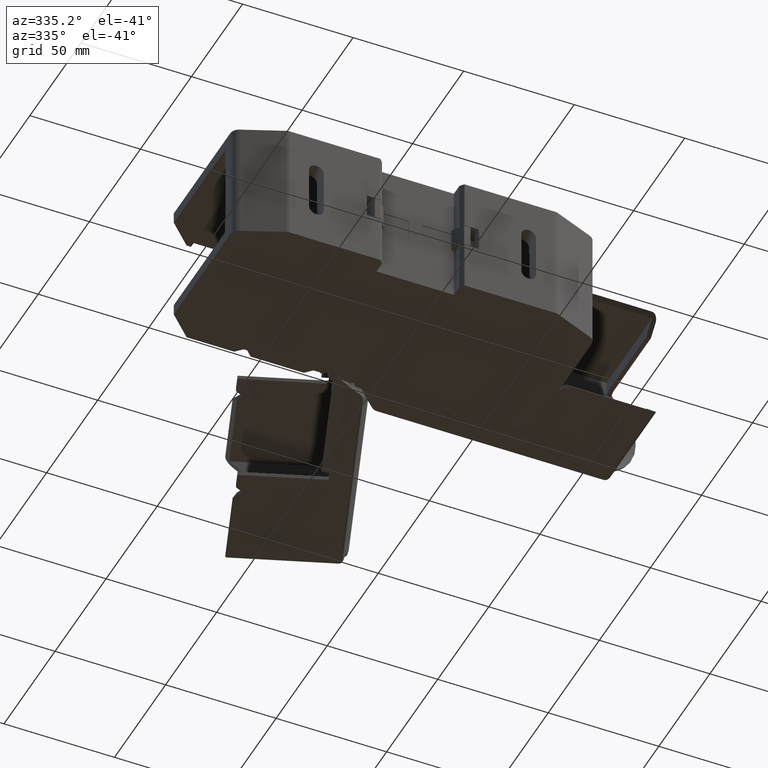
[diagram: clean part render]
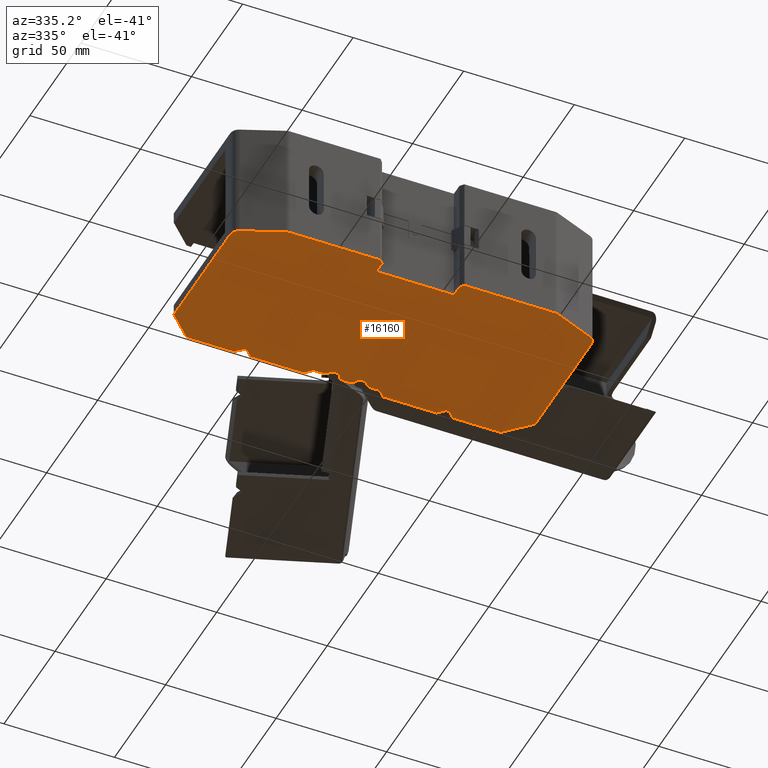
[diagram: same view with one face highlighted and labeled with its STEP entity id]
A machine part, auxiliary view. The second image highlights one B-rep face of the part: STEP entity #16160.
In plain terms, the highlighted planar face has unit normal (-0, 0, 1).
Its self-contained STEP definition (entity closure, byte-faithful):
#635 = CARTESIAN_POINT ( 'NONE',  ( 438.3583398030324400, -266.4817908835909200, -23.50000000000452300 ) ) ;
#651 = DIRECTION ( 'NONE',  ( -1.000000000000000000, 0.0000000000000000000, 0.0000000000000000000 ) ) ;
#675 = LINE ( 'NONE', #635, #18953 ) ;
#708 = CARTESIAN_POINT ( 'NONE',  ( 420.5639263486614300, -273.1817908678040700, -23.50000000000452300 ) ) ;
#719 = DIRECTION ( 'NONE',  ( -6.373112589876832200E-025, -1.346653504139820300E-027, 1.000000000000000000 ) ) ;
#728 = DIRECTION ( 'NONE',  ( 0.9238795256513937500, -0.3826834489263359300, 0.0000000000000000000 ) ) ;
#778 = CARTESIAN_POINT ( 'NONE',  ( 360.4927018639037300, -266.0016971900641900, -23.50000000000452300 ) ) ;
#806 = DIRECTION ( 'NONE',  ( 1.000000000000000000, 0.0000000000000000000, 1.762592932593031400E-024 ) ) ;
#810 = LINE ( 'NONE', #778, #18997 ) ;
#833 = DIRECTION ( 'NONE',  ( -1.000000000000000000, 0.0000000000000000000, 0.0000000000000000000 ) ) ;
#866 = CARTESIAN_POINT ( 'NONE',  ( 421.7734356056909600, -271.7264437664534900, -23.50000000000452300 ) ) ;
#879 = DIRECTION ( 'NONE',  ( -6.373112589876832200E-025, -1.346653504139820300E-027, 1.000000000000000000 ) ) ;
#895 = CARTESIAN_POINT ( 'NONE',  ( 362.0234356596091100, -262.3061790874586400, -23.50000000000483200 ) ) ;
#900 = DIRECTION ( 'NONE',  ( -0.0000000000000000000, -0.0000000000000000000, 1.000000000000000000 ) ) ;
#901 = DIRECTION ( 'NONE',  ( -1.000000000000000000, 0.0000000000000000000, 0.0000000000000000000 ) ) ;
#927 = DIRECTION ( 'NONE',  ( -1.000000000000000000, 0.0000000000000000000, 0.0000000000000000000 ) ) ;
#931 = CARTESIAN_POINT ( 'NONE',  ( 438.3583398030324400, -273.6817934590882300, -23.50000000000452300 ) ) ;
#938 = CARTESIAN_POINT ( 'NONE',  ( 457.7734356056913000, -271.7264441558026500, -23.50000000000452300 ) ) ;
#958 = LINE ( 'NONE', #988, #19017 ) ;
#968 = LINE ( 'NONE', #931, #19024 ) ;
#979 = DIRECTION ( 'NONE',  ( -6.373112589876832200E-025, -1.346653504139820300E-027, 1.000000000000000000 ) ) ;
#988 = CARTESIAN_POINT ( 'NONE',  ( 457.2734356624135300, -197.1817918479589800, -23.50000000000452300 ) ) ;
#1009 = DIRECTION ( 'NONE',  ( 1.000000000000000000, 0.0000000000000000000, 1.762592932593031400E-024 ) ) ;
#1016 = DIRECTION ( 'NONE',  ( -3.360043194369954300E-056, -1.000000000000000000, 1.906306970961718500E-032 ) ) ;
#1076 = CARTESIAN_POINT ( 'NONE',  ( 458.9829445418212100, -273.1817909570307300, -23.50000000000452300 ) ) ;
#1078 = DIRECTION ( 'NONE',  ( -6.373112589876832200E-025, -1.346653504139820300E-027, 1.000000000000000000 ) ) ;
#1079 = DIRECTION ( 'NONE',  ( -1.000000000000000000, -1.110223024625155500E-013, 0.0000000000000000000 ) ) ;
#1218 = CARTESIAN_POINT ( 'NONE',  ( 480.9772257926351200, -253.6725215637366900, -23.50000000000452300 ) ) ;
#1234 = DIRECTION ( 'NONE',  ( -6.373112589876832200E-025, -1.346653504139820300E-027, 1.000000000000000000 ) ) ;
#1258 = DIRECTION ( 'NONE',  ( -1.000000000000000000, 0.0000000000000000000, 0.0000000000000000000 ) ) ;
#1270 = CARTESIAN_POINT ( 'NONE',  ( 398.5696458092634200, -253.6725206724789200, -23.50000000000452300 ) ) ;
#1271 = DIRECTION ( 'NONE',  ( -0.0000000000000000000, -0.0000000000000000000, 1.000000000000000000 ) ) ;
#1272 = CARTESIAN_POINT ( 'NONE',  ( 379.8297473953250000, -269.6817952781915400, -23.50000000000468200 ) ) ;
#1275 = LINE ( 'NONE', #1312, #19057 ) ;
#1290 = DIRECTION ( 'NONE',  ( -1.000000000000000000, -4.163336342344333200E-014, 0.0000000000000000000 ) ) ;
#1292 = DIRECTION ( 'NONE',  ( 1.000000000000000000, 0.0000000000000000000, 1.762592932593031400E-024 ) ) ;
#1296 = DIRECTION ( 'NONE',  ( -6.373112589876832200E-025, -1.346653504139820300E-027, 1.000000000000000000 ) ) ;
#1297 = DIRECTION ( 'NONE',  ( -1.000000000000000000, 0.0000000000000000000, 0.0000000000000000000 ) ) ;
#1300 = CARTESIAN_POINT ( 'NONE',  ( 438.3583398030324400, -273.6817911201741300, -23.50000000000452300 ) ) ;
#1307 = LINE ( 'NONE', #1300, #19043 ) ;
#1312 = CARTESIAN_POINT ( 'NONE',  ( 422.2734356056909100, -197.1817918479589800, -23.50000000000452300 ) ) ;
#1319 = DIRECTION ( 'NONE',  ( 0.0000000000000000000, 0.0000000000000000000, 1.000000000000000000 ) ) ;
#1324 = DIRECTION ( 'NONE',  ( 0.9238795915953047500, 0.3826832897236210300, 0.0000000000000000000 ) ) ;
#1331 = CARTESIAN_POINT ( 'NONE',  ( 499.7171231449609600, -269.6817953674185400, -23.50000000000462900 ) ) ;
#1341 = DIRECTION ( 'NONE',  ( 1.000000000000000000, 0.0000000000000000000, 0.0000000000000000000 ) ) ;
#1346 = DIRECTION ( 'NONE',  ( 3.360043194369954300E-056, 1.000000000000000000, -1.906306970961718500E-032 ) ) ;
#1353 = LINE ( 'NONE', #1356, #19112 ) ;
#1356 = CARTESIAN_POINT ( 'NONE',  ( 501.2478577149950100, -273.3773153394200800, -23.50000000000452300 ) ) ;
#2667 = VERTEX_POINT ( 'NONE', #39333 ) ;
#2668 = VERTEX_POINT ( 'NONE', #39351 ) ;
#2669 = VERTEX_POINT ( 'NONE', #39352 ) ;
#2673 = VERTEX_POINT ( 'NONE', #39369 ) ;
#2678 = VERTEX_POINT ( 'NONE', #39334 ) ;
#2683 = VERTEX_POINT ( 'NONE', #39356 ) ;
#2684 = VERTEX_POINT ( 'NONE', #39363 ) ;
#2686 = VERTEX_POINT ( 'NONE', #39372 ) ;
#2697 = VERTEX_POINT ( 'NONE', #39336 ) ;
#2705 = VERTEX_POINT ( 'NONE', #39434 ) ;
#2706 = VERTEX_POINT ( 'NONE', #39450 ) ;
#2707 = VERTEX_POINT ( 'NONE', #39388 ) ;
#2713 = VERTEX_POINT ( 'NONE', #39419 ) ;
#2714 = VERTEX_POINT ( 'NONE', #39447 ) ;
#2719 = VERTEX_POINT ( 'NONE', #39397 ) ;
#2721 = VERTEX_POINT ( 'NONE', #39412 ) ;
#2723 = VERTEX_POINT ( 'NONE', #39442 ) ;
#2724 = VERTEX_POINT ( 'NONE', #39392 ) ;
#2725 = VERTEX_POINT ( 'NONE', #39403 ) ;
#2727 = VERTEX_POINT ( 'NONE', #39402 ) ;
#2729 = VERTEX_POINT ( 'NONE', #39425 ) ;
#2731 = VERTEX_POINT ( 'NONE', #39406 ) ;
#2733 = VERTEX_POINT ( 'NONE', #39407 ) ;
#2735 = VERTEX_POINT ( 'NONE', #39408 ) ;
#2738 = VERTEX_POINT ( 'NONE', #39404 ) ;
#2742 = VERTEX_POINT ( 'NONE', #39437 ) ;
#2744 = VERTEX_POINT ( 'NONE', #39426 ) ;
#2748 = VERTEX_POINT ( 'NONE', #39395 ) ;
#2749 = VERTEX_POINT ( 'NONE', #39421 ) ;
#2750 = VERTEX_POINT ( 'NONE', #39436 ) ;
#2751 = VERTEX_POINT ( 'NONE', #39399 ) ;
#2754 = VERTEX_POINT ( 'NONE', #39396 ) ;
#2761 = VERTEX_POINT ( 'NONE', #39439 ) ;
#2766 = VERTEX_POINT ( 'NONE', #39462 ) ;
#2768 = VERTEX_POINT ( 'NONE', #39500 ) ;
#2769 = VERTEX_POINT ( 'NONE', #39493 ) ;
#2771 = VERTEX_POINT ( 'NONE', #39495 ) ;
#2777 = VERTEX_POINT ( 'NONE', #39466 ) ;
#2778 = VERTEX_POINT ( 'NONE', #39465 ) ;
#2780 = VERTEX_POINT ( 'NONE', #39496 ) ;
#2781 = VERTEX_POINT ( 'NONE', #39508 ) ;
#2791 = VERTEX_POINT ( 'NONE', #39489 ) ;
#2793 = VERTEX_POINT ( 'NONE', #39490 ) ;
#2795 = VERTEX_POINT ( 'NONE', #39504 ) ;
#2802 = VERTEX_POINT ( 'NONE', #39511 ) ;
#2803 = VERTEX_POINT ( 'NONE', #39497 ) ;
#3305 = AXIS2_PLACEMENT_3D ( 'NONE', #23781, #23752, #23743 ) ;
#7873 = DIRECTION ( 'NONE',  ( -1.000000000000000000, -0.0000000000000000000, 0.0000000000000000000 ) ) ;
#7877 = LINE ( 'NONE', #7890, #23159 ) ;
#7890 = CARTESIAN_POINT ( 'NONE',  ( 489.2734502271952700, -196.3707966989012700, -23.50000000000452300 ) ) ;
#7893 = CARTESIAN_POINT ( 'NONE',  ( 484.7734485582649900, -199.3707990532846300, -23.50000000000496700 ) ) ;
#7902 = LINE ( 'NONE', #7982, #23221 ) ;
#7903 = DIRECTION ( 'NONE',  ( -0.7071071959159093100, -0.7071063664569424700, 0.0000000000000000000 ) ) ;
#7906 = DIRECTION ( 'NONE',  ( 1.000000000000000000, 0.0000000000000000000, 0.0000000000000000000 ) ) ;
#7911 = CARTESIAN_POINT ( 'NONE',  ( 436.9323705193854700, -199.6055692138604900, -23.50000000000483900 ) ) ;
#7913 = DIRECTION ( 'NONE',  ( 0.0000000000000000000, 0.0000000000000000000, 1.000000000000000000 ) ) ;
#7915 = LINE ( 'NONE', #7893, #23190 ) ;
#7927 = DIRECTION ( 'NONE',  ( -1.000000000000000000, 0.0000000000000000000, 0.0000000000000000000 ) ) ;
#7929 = DIRECTION ( 'NONE',  ( 0.0000000000000000000, 0.0000000000000000000, -1.000000000000000000 ) ) ;
#7938 = LINE ( 'NONE', #7994, #23207 ) ;
#7939 = CARTESIAN_POINT ( 'NONE',  ( 445.7735978776140100, -199.3743370542730100, -23.50000000000473900 ) ) ;
#7958 = DIRECTION ( 'NONE',  ( -0.8009369842317867200, -0.5987486511798509900, 0.0000000000000000000 ) ) ;
#7962 = LINE ( 'NONE', #7980, #23208 ) ;
#7971 = DIRECTION ( 'NONE',  ( -1.000000000000000000, -0.0000000000000000000, -1.762592932593031400E-024 ) ) ;
#7980 = CARTESIAN_POINT ( 'NONE',  ( 438.3583398030324400, -196.3707966989012700, -23.50000000000452300 ) ) ;
#7982 = CARTESIAN_POINT ( 'NONE',  ( 449.7699463817781400, -199.5698620690527000, -23.50000000000452300 ) ) ;
#7989 = DIRECTION ( 'NONE',  ( -0.7071072027376512600, 0.7071063596351924200, 0.0000000000000000000 ) ) ;
#7990 = CARTESIAN_POINT ( 'NONE',  ( 450.3686950329579900, -200.3707990532846300, -23.50000000000462200 ) ) ;
#7994 = CARTESIAN_POINT ( 'NONE',  ( 457.7783781008066600, -196.3707966989011600, -23.50000000000452300 ) ) ;
#7995 = DIRECTION ( 'NONE',  ( 0.0000000000000000000, 0.0000000000000000000, 1.000000000000000000 ) ) ;
#7999 = DIRECTION ( 'NONE',  ( 1.000000000000000000, 0.0000000000000000000, 0.0000000000000000000 ) ) ;
#8003 = CARTESIAN_POINT ( 'NONE',  ( 484.7734482486234200, -199.3707988906279200, -23.50000000000452300 ) ) ;
#8010 = LINE ( 'NONE', #8003, #23195 ) ;
#8013 = CARTESIAN_POINT ( 'NONE',  ( 432.2468161858322400, -201.4162550063955700, -23.50000000000452300 ) ) ;
#8014 = DIRECTION ( 'NONE',  ( -0.8009369842318361200, 0.5987486511797847100, 0.0000000000000000000 ) ) ;
#8016 = LINE ( 'NONE', #8013, #23189 ) ;
#8022 = CARTESIAN_POINT ( 'NONE',  ( 517.5234350960895400, -262.3061848724220800, -23.50000000000472900 ) ) ;
#8023 = DIRECTION ( 'NONE',  ( -5.184916804330701900E-023, 2.892437796713807900E-015, 1.000000000000000000 ) ) ;
#8024 = DIRECTION ( 'NONE',  ( 0.0000000000000000000, -1.000000000000000000, 2.602085213965208300E-015 ) ) ;
#8027 = DIRECTION ( 'NONE',  ( -0.7071072233476091200, -0.7071063390252095800, 0.0000000000000000000 ) ) ;
#8031 = LINE ( 'NONE', #8095, #23222 ) ;
#8065 = DIRECTION ( 'NONE',  ( -0.7071070133767590700, 0.7071065489962598000, 0.0000000000000000000 ) ) ;
#8095 = CARTESIAN_POINT ( 'NONE',  ( 521.5234350593254900, -207.1207894062287700, -23.50000000000452300 ) ) ;
#8821 = EDGE_CURVE ( 'NONE', #2803, #2766, #7877, .T. ) ;
#8822 = EDGE_CURVE ( 'NONE', #2707, #2795, #23139, .T. ) ;
#8824 = EDGE_CURVE ( 'NONE', #2766, #2769, #7915, .T. ) ;
#8828 = EDGE_CURVE ( 'NONE', #2725, #2771, #7902, .T. ) ;
#8829 = EDGE_CURVE ( 'NONE', #2781, #2803, #7962, .T. ) ;
#8830 = EDGE_CURVE ( 'NONE', #2771, #2777, #23177, .T. ) ;
#8833 = EDGE_CURVE ( 'NONE', #2778, #2754, #7938, .T. ) ;
#8836 = EDGE_CURVE ( 'NONE', #2768, #2725, #23224, .T. ) ;
#8837 = EDGE_CURVE ( 'NONE', #2791, #2697, #8016, .T. ) ;
#8838 = EDGE_CURVE ( 'NONE', #2769, #2793, #8010, .T. ) ;
#8839 = EDGE_CURVE ( 'NONE', #2751, #2714, #23204, .T. ) ;
#8841 = EDGE_CURVE ( 'NONE', #2686, #2781, #8031, .T. ) ;
#8849 = EDGE_CURVE ( 'NONE', #2668, #2705, #21127, .T. ) ;
#8852 = EDGE_CURVE ( 'NONE', #2742, #2707, #23192, .T. ) ;
#8854 = EDGE_CURVE ( 'NONE', #2738, #2668, #21063, .T. ) ;
#8860 = EDGE_CURVE ( 'NONE', #2733, #2742, #23197, .T. ) ;
#8861 = EDGE_CURVE ( 'NONE', #2705, #2748, #21331, .T. ) ;
#8862 = EDGE_CURVE ( 'NONE', #2724, #2780, #21352, .T. ) ;
#8865 = EDGE_CURVE ( 'NONE', #2780, #2735, #21390, .T. ) ;
#8867 = EDGE_CURVE ( 'NONE', #2714, #2686, #21342, .T. ) ;
#8872 = EDGE_CURVE ( 'NONE', #2723, #2795, #21472, .T. ) ;
#8875 = EDGE_CURVE ( 'NONE', #2733, #2777, #21445, .T. ) ;
#8879 = EDGE_CURVE ( 'NONE', #2721, #2738, #21443, .T. ) ;
#8881 = EDGE_CURVE ( 'NONE', #2802, #2724, #21623, .T. ) ;
#8882 = EDGE_CURVE ( 'NONE', #2754, #2768, #21571, .T. ) ;
#8884 = EDGE_CURVE ( 'NONE', #2729, #2721, #21581, .T. ) ;
#8886 = EDGE_CURVE ( 'NONE', #2735, #2729, #21794, .T. ) ;
#8890 = EDGE_CURVE ( 'NONE', #2793, #2778, #21843, .T. ) ;
#8891 = EDGE_CURVE ( 'NONE', #2723, #2791, #23219, .T. ) ;
#8894 = EDGE_CURVE ( 'NONE', #2697, #2802, #23176, .T. ) ;
#16160 = ADVANCED_FACE ( 'NONE', ( #23696 ), #23754, .F. ) ;
#18932 = AXIS2_PLACEMENT_3D ( 'NONE', #708, #719, #651 ) ;
#18952 = CIRCLE ( 'NONE', #18932, 0.5000000000000004400 ) ;
#18953 = VECTOR ( 'NONE', #806, 1000.000000000000000 ) ;
#18981 = AXIS2_PLACEMENT_3D ( 'NONE', #938, #979, #927 ) ;
#18990 = CIRCLE ( 'NONE', #18981, 0.5000000000000004400 ) ;
#18997 = VECTOR ( 'NONE', #728, 1000.000000000000200 ) ;
#19000 = CIRCLE ( 'NONE', #19005, 0.5000000000000004400 ) ;
#19005 = AXIS2_PLACEMENT_3D ( 'NONE', #866, #879, #833 ) ;
#19017 = VECTOR ( 'NONE', #1016, 1000.000000000000000 ) ;
#19023 = AXIS2_PLACEMENT_3D ( 'NONE', #895, #900, #901 ) ;
#19024 = VECTOR ( 'NONE', #1009, 1000.000000000000000 ) ;
#19030 = CIRCLE ( 'NONE', #19023, 4.000000000000003600 ) ;
#19039 = AXIS2_PLACEMENT_3D ( 'NONE', #1076, #1078, #1079 ) ;
#19041 = CIRCLE ( 'NONE', #19039, 0.5000000000000004400 ) ;
#19043 = VECTOR ( 'NONE', #1292, 1000.000000000000000 ) ;
#19048 = CIRCLE ( 'NONE', #19067, 4.000000000000003600 ) ;
#19050 = AXIS2_PLACEMENT_3D ( 'NONE', #1270, #1296, #1297 ) ;
#19057 = VECTOR ( 'NONE', #1346, 1000.000000000000000 ) ;
#19061 = AXIS2_PLACEMENT_3D ( 'NONE', #1272, #1271, #1290 ) ;
#19064 = CIRCLE ( 'NONE', #19050, 29.89999999999903900 ) ;
#19067 = AXIS2_PLACEMENT_3D ( 'NONE', #1331, #1319, #1341 ) ;
#19076 = CIRCLE ( 'NONE', #19061, 4.000000000000003600 ) ;
#19078 = CIRCLE ( 'NONE', #19083, 29.90000000000037200 ) ;
#19083 = AXIS2_PLACEMENT_3D ( 'NONE', #1218, #1234, #1258 ) ;
#19112 = VECTOR ( 'NONE', #1324, 1000.000000000000000 ) ;
#20981 = CARTESIAN_POINT ( 'NONE',  ( 368.7734354635795700, -196.3707966989011300, -23.50000000000452300 ) ) ;
#20991 = CARTESIAN_POINT ( 'NONE',  ( 439.7734351817129500, -208.6707966989010000, -23.50000000000481000 ) ) ;
#20999 = DIRECTION ( 'NONE',  ( 0.0000000000000000000, 0.0000000000000000000, 1.000000000000000000 ) ) ;
#21002 = DIRECTION ( 'NONE',  ( 1.000000000000000000, 0.0000000000000000000, 0.0000000000000000000 ) ) ;
#21015 = DIRECTION ( 'NONE',  ( -0.7071070133767523000, -0.7071065489962664600, 0.0000000000000000000 ) ) ;
#21063 = LINE ( 'NONE', #21198, #23202 ) ;
#21127 = LINE ( 'NONE', #20981, #23227 ) ;
#21195 = DIRECTION ( 'NONE',  ( -1.000000000000000000, -0.0000000000000000000, -1.762592932593031400E-024 ) ) ;
#21198 = CARTESIAN_POINT ( 'NONE',  ( 438.3583398030324400, -196.3707966989011600, -23.50000000000452300 ) ) ;
#21293 = CARTESIAN_POINT ( 'NONE',  ( 438.3583398030324400, -196.3707966989010500, -23.50000000000452300 ) ) ;
#21296 = CARTESIAN_POINT ( 'NONE',  ( 424.7684987345654700, -199.3707990532846300, -23.50000000000452300 ) ) ;
#21305 = CARTESIAN_POINT ( 'NONE',  ( 521.5234350960895400, -197.1817918479589800, -23.50000000000452300 ) ) ;
#21308 = DIRECTION ( 'NONE',  ( -3.360043194369954300E-056, -1.000000000000000000, 1.906306970961718500E-032 ) ) ;
#21313 = DIRECTION ( 'NONE',  ( 3.360043194369954300E-056, 1.000000000000000000, -1.906306970961718500E-032 ) ) ;
#21324 = DIRECTION ( 'NONE',  ( -1.000000000000000000, -0.0000000000000000000, -1.762592932593031400E-024 ) ) ;
#21331 = LINE ( 'NONE', #21339, #23223 ) ;
#21336 = DIRECTION ( 'NONE',  ( 0.0000000000000000000, 0.0000000000000000000, 1.000000000000000000 ) ) ;
#21339 = CARTESIAN_POINT ( 'NONE',  ( 358.0234366522377600, -197.1817918479589800, -23.50000000000452300 ) ) ;
#21342 = LINE ( 'NONE', #21305, #23199 ) ;
#21352 = LINE ( 'NONE', #21296, #23196 ) ;
#21390 = LINE ( 'NONE', #21293, #23198 ) ;
#21404 = DIRECTION ( 'NONE',  ( 1.000000000000000000, 0.0000000000000000000, 0.0000000000000000000 ) ) ;
#21407 = CARTESIAN_POINT ( 'NONE',  ( 442.6145002363125500, -199.6055692138604900, -23.50000000000483900 ) ) ;
#21415 = DIRECTION ( 'NONE',  ( -0.7071072202154530300, 0.7071063421573694500, 0.0000000000000000000 ) ) ;
#21418 = DIRECTION ( 'NONE',  ( 0.3401132867224381200, 0.9403844704134902700, 0.0000000000000000000 ) ) ;
#21422 = CARTESIAN_POINT ( 'NONE',  ( 442.9523535956630600, -199.0696067722096500, -23.50000000000483900 ) ) ;
#21438 = DIRECTION ( 'NONE',  ( 0.3401132867224381200, -0.9403844704134902700, 0.0000000000000000000 ) ) ;
#21443 = LINE ( 'NONE', #21563, #23206 ) ;
#21445 = LINE ( 'NONE', #21422, #23210 ) ;
#21472 = LINE ( 'NONE', #21477, #23220 ) ;
#21477 = CARTESIAN_POINT ( 'NONE',  ( 436.5945171600351400, -199.0696067722096500, -23.50000000000487400 ) ) ;
#21554 = DIRECTION ( 'NONE',  ( -0.7071071436393054900, 0.7071064187336038000, 0.0000000000000000000 ) ) ;
#21563 = CARTESIAN_POINT ( 'NONE',  ( 393.2734251275038600, -199.3707982223844200, -23.50000000000452300 ) ) ;
#21571 = LINE ( 'NONE', #21644, #23217 ) ;
#21581 = LINE ( 'NONE', #21594, #23218 ) ;
#21594 = CARTESIAN_POINT ( 'NONE',  ( 394.7734221974329800, -199.3707990532846300, -23.50000000000476100 ) ) ;
#21623 = LINE ( 'NONE', #21625, #23216 ) ;
#21625 = CARTESIAN_POINT ( 'NONE',  ( 438.3583398030324400, -199.3707990532846300, -23.50000000000452300 ) ) ;
#21629 = DIRECTION ( 'NONE',  ( -1.000000000000000000, -0.0000000000000000000, -1.762592932593031400E-024 ) ) ;
#21644 = CARTESIAN_POINT ( 'NONE',  ( 438.3583398030324400, -199.3707990532846300, -23.50000000000452300 ) ) ;
#21661 = DIRECTION ( 'NONE',  ( -1.000000000000000000, -0.0000000000000000000, -1.762592932593031400E-024 ) ) ;
#21719 = DIRECTION ( 'NONE',  ( -1.000000000000000000, -0.0000000000000000000, 0.0000000000000000000 ) ) ;
#21794 = LINE ( 'NONE', #21804, #23215 ) ;
#21804 = CARTESIAN_POINT ( 'NONE',  ( 397.7734282771065800, -196.3707966989011300, -23.50000000000452300 ) ) ;
#21813 = DIRECTION ( 'NONE',  ( -0.7071070949200967100, -0.7071064674528591000, 0.0000000000000000000 ) ) ;
#21843 = LINE ( 'NONE', #21848, #23168 ) ;
#21848 = CARTESIAN_POINT ( 'NONE',  ( 438.3583398030324400, -196.3707966989011600, -23.50000000000452300 ) ) ;
#21850 = DIRECTION ( 'NONE',  ( -1.000000000000000000, -0.0000000000000000000, -1.762592932593031400E-024 ) ) ;
#21932 = DIRECTION ( 'NONE',  ( 0.0000000000000000000, 0.0000000000000000000, -1.000000000000000000 ) ) ;
#21950 = DIRECTION ( 'NONE',  ( -1.000000000000000000, 0.0000000000000000000, 0.0000000000000000000 ) ) ;
#21957 = CARTESIAN_POINT ( 'NONE',  ( 433.7732728780844700, -199.3743370542730100, -23.50000000000469700 ) ) ;
#22118 = DIRECTION ( 'NONE',  ( 0.0000000000000000000, 0.0000000000000000000, 1.000000000000000000 ) ) ;
#22124 = CARTESIAN_POINT ( 'NONE',  ( 429.1781757227404900, -200.3707990532846300, -23.50000000000469700 ) ) ;
#22128 = DIRECTION ( 'NONE',  ( 1.000000000000000000, 0.0000000000000000000, 0.0000000000000000000 ) ) ;
#23139 = CIRCLE ( 'NONE', #23140, 0.5000000000000004400 ) ;
#23140 = AXIS2_PLACEMENT_3D ( 'NONE', #7911, #7913, #7906 ) ;
#23159 = VECTOR ( 'NONE', #7903, 1000.000000000000100 ) ;
#23168 = VECTOR ( 'NONE', #21850, 1000.000000000000000 ) ;
#23173 = AXIS2_PLACEMENT_3D ( 'NONE', #21957, #21932, #21950 ) ;
#23176 = CIRCLE ( 'NONE', #23178, 1.000000000000000900 ) ;
#23177 = CIRCLE ( 'NONE', #23185, 2.549411492192454900 ) ;
#23178 = AXIS2_PLACEMENT_3D ( 'NONE', #22124, #22118, #22128 ) ;
#23185 = AXIS2_PLACEMENT_3D ( 'NONE', #7939, #7929, #7927 ) ;
#23187 = AXIS2_PLACEMENT_3D ( 'NONE', #7990, #7995, #7999 ) ;
#23189 = VECTOR ( 'NONE', #8014, 1000.000000000000100 ) ;
#23190 = VECTOR ( 'NONE', #7873, 1000.000000000000000 ) ;
#23191 = AXIS2_PLACEMENT_3D ( 'NONE', #8022, #8023, #8024 ) ;
#23192 = CIRCLE ( 'NONE', #23213, 10.00000000000000900 ) ;
#23195 = VECTOR ( 'NONE', #7989, 1000.000000000000200 ) ;
#23196 = VECTOR ( 'NONE', #21415, 1000.000000000000200 ) ;
#23197 = CIRCLE ( 'NONE', #23205, 0.5000000000000004400 ) ;
#23198 = VECTOR ( 'NONE', #21324, 1000.000000000000000 ) ;
#23199 = VECTOR ( 'NONE', #21313, 1000.000000000000000 ) ;
#23202 = VECTOR ( 'NONE', #21195, 1000.000000000000000 ) ;
#23204 = CIRCLE ( 'NONE', #23191, 4.000000000000003600 ) ;
#23205 = AXIS2_PLACEMENT_3D ( 'NONE', #21407, #21336, #21404 ) ;
#23206 = VECTOR ( 'NONE', #21554, 1000.000000000000100 ) ;
#23207 = VECTOR ( 'NONE', #8027, 1000.000000000000000 ) ;
#23208 = VECTOR ( 'NONE', #7971, 1000.000000000000000 ) ;
#23210 = VECTOR ( 'NONE', #21438, 1000.000000000000000 ) ;
#23213 = AXIS2_PLACEMENT_3D ( 'NONE', #20991, #20999, #21002 ) ;
#23215 = VECTOR ( 'NONE', #21813, 1000.000000000000000 ) ;
#23216 = VECTOR ( 'NONE', #21629, 1000.000000000000000 ) ;
#23217 = VECTOR ( 'NONE', #21661, 1000.000000000000000 ) ;
#23218 = VECTOR ( 'NONE', #21719, 1000.000000000000000 ) ;
#23219 = CIRCLE ( 'NONE', #23173, 2.549411492192454900 ) ;
#23220 = VECTOR ( 'NONE', #21418, 1000.000000000000000 ) ;
#23221 = VECTOR ( 'NONE', #7958, 999.9999999999998900 ) ;
#23222 = VECTOR ( 'NONE', #8065, 1000.000000000000000 ) ;
#23223 = VECTOR ( 'NONE', #21308, 1000.000000000000000 ) ;
#23224 = CIRCLE ( 'NONE', #23187, 1.000000000000000900 ) ;
#23227 = VECTOR ( 'NONE', #21015, 1000.000000000000000 ) ;
#23696 = FACE_OUTER_BOUND ( 'NONE', #39030, .T. ) ;
#23743 = DIRECTION ( 'NONE',  ( 1.000000000000000000, 0.0000000000000000000, 1.762592932593031400E-024 ) ) ;
#23752 = DIRECTION ( 'NONE',  ( -1.762592932593031400E-024, 1.906306970961718500E-032, 1.000000000000000000 ) ) ;
#23754 = PLANE ( 'NONE',  #3305 ) ;
#23781 = CARTESIAN_POINT ( 'NONE',  ( 438.3583398030324400, -197.1817918479589800, -23.50000000000452300 ) ) ;
#34199 = EDGE_CURVE ( 'NONE', #2706, #2683, #18952, .T. ) ;
#34202 = EDGE_CURVE ( 'NONE', #2750, #2667, #675, .T. ) ;
#34211 = EDGE_CURVE ( 'NONE', #2727, #2678, #810, .T. ) ;
#34226 = EDGE_CURVE ( 'NONE', #2748, #2727, #19030, .T. ) ;
#34227 = EDGE_CURVE ( 'NONE', #2749, #2744, #19000, .T. ) ;
#34239 = EDGE_CURVE ( 'NONE', #2731, #2706, #968, .T. ) ;
#34241 = EDGE_CURVE ( 'NONE', #2667, #2684, #958, .T. ) ;
#34244 = EDGE_CURVE ( 'NONE', #2684, #2713, #18990, .T. ) ;
#34273 = EDGE_CURVE ( 'NONE', #2673, #2669, #19041, .T. ) ;
#34299 = EDGE_CURVE ( 'NONE', #2713, #2673, #19078, .T. ) ;
#34305 = EDGE_CURVE ( 'NONE', #2669, #2719, #1307, .T. ) ;
#34310 = EDGE_CURVE ( 'NONE', #2678, #2731, #19076, .T. ) ;
#34313 = EDGE_CURVE ( 'NONE', #2683, #2749, #19064, .T. ) ;
#34314 = EDGE_CURVE ( 'NONE', #2719, #2761, #19048, .T. ) ;
#34315 = EDGE_CURVE ( 'NONE', #2744, #2750, #1275, .T. ) ;
#34322 = EDGE_CURVE ( 'NONE', #2761, #2751, #1353, .T. ) ;
#35027 = ORIENTED_EDGE ( 'NONE', *, *, #8854, .F. ) ;
#35033 = ORIENTED_EDGE ( 'NONE', *, *, #8872, .T. ) ;
#35040 = ORIENTED_EDGE ( 'NONE', *, *, #34199, .F. ) ;
#35041 = ORIENTED_EDGE ( 'NONE', *, *, #8829, .F. ) ;
#35043 = ORIENTED_EDGE ( 'NONE', *, *, #8821, .F. ) ;
#35048 = ORIENTED_EDGE ( 'NONE', *, *, #34314, .F. ) ;
#35050 = ORIENTED_EDGE ( 'NONE', *, *, #34322, .F. ) ;
#35052 = ORIENTED_EDGE ( 'NONE', *, *, #34244, .F. ) ;
#35059 = ORIENTED_EDGE ( 'NONE', *, *, #34313, .F. ) ;
#35066 = ORIENTED_EDGE ( 'NONE', *, *, #8852, .F. ) ;
#35085 = ORIENTED_EDGE ( 'NONE', *, *, #8849, .F. ) ;
#35087 = ORIENTED_EDGE ( 'NONE', *, *, #8860, .F. ) ;
#35092 = ORIENTED_EDGE ( 'NONE', *, *, #8836, .F. ) ;
#35096 = ORIENTED_EDGE ( 'NONE', *, *, #8865, .F. ) ;
#35097 = ORIENTED_EDGE ( 'NONE', *, *, #34315, .F. ) ;
#35099 = ORIENTED_EDGE ( 'NONE', *, *, #8890, .F. ) ;
#35104 = ORIENTED_EDGE ( 'NONE', *, *, #8841, .F. ) ;
#35106 = ORIENTED_EDGE ( 'NONE', *, *, #34239, .F. ) ;
#35113 = ORIENTED_EDGE ( 'NONE', *, *, #8879, .F. ) ;
#35116 = ORIENTED_EDGE ( 'NONE', *, *, #34310, .F. ) ;
#35117 = ORIENTED_EDGE ( 'NONE', *, *, #8867, .F. ) ;
#35121 = ORIENTED_EDGE ( 'NONE', *, *, #8861, .F. ) ;
#35133 = ORIENTED_EDGE ( 'NONE', *, *, #8886, .F. ) ;
#35135 = ORIENTED_EDGE ( 'NONE', *, *, #34305, .F. ) ;
#35137 = ORIENTED_EDGE ( 'NONE', *, *, #8828, .F. ) ;
#35138 = ORIENTED_EDGE ( 'NONE', *, *, #8875, .T. ) ;
#35140 = ORIENTED_EDGE ( 'NONE', *, *, #34202, .F. ) ;
#35144 = ORIENTED_EDGE ( 'NONE', *, *, #34273, .F. ) ;
#35147 = ORIENTED_EDGE ( 'NONE', *, *, #8839, .F. ) ;
#35152 = ORIENTED_EDGE ( 'NONE', *, *, #8830, .F. ) ;
#35154 = ORIENTED_EDGE ( 'NONE', *, *, #8862, .F. ) ;
#35158 = ORIENTED_EDGE ( 'NONE', *, *, #8894, .F. ) ;
#35159 = ORIENTED_EDGE ( 'NONE', *, *, #8838, .F. ) ;
#35161 = ORIENTED_EDGE ( 'NONE', *, *, #8833, .F. ) ;
#35165 = ORIENTED_EDGE ( 'NONE', *, *, #8891, .F. ) ;
#35196 = ORIENTED_EDGE ( 'NONE', *, *, #8822, .F. ) ;
#35198 = ORIENTED_EDGE ( 'NONE', *, *, #34241, .F. ) ;
#35208 = ORIENTED_EDGE ( 'NONE', *, *, #34226, .F. ) ;
#35214 = ORIENTED_EDGE ( 'NONE', *, *, #8884, .F. ) ;
#35221 = ORIENTED_EDGE ( 'NONE', *, *, #8882, .F. ) ;
#35224 = ORIENTED_EDGE ( 'NONE', *, *, #34227, .F. ) ;
#35226 = ORIENTED_EDGE ( 'NONE', *, *, #8837, .F. ) ;
#35228 = ORIENTED_EDGE ( 'NONE', *, *, #8881, .F. ) ;
#35233 = ORIENTED_EDGE ( 'NONE', *, *, #34211, .F. ) ;
#35238 = ORIENTED_EDGE ( 'NONE', *, *, #8824, .F. ) ;
#35243 = ORIENTED_EDGE ( 'NONE', *, *, #34299, .F. ) ;
#39030 = EDGE_LOOP ( 'NONE', ( #35208, #35121, #35085, #35027, #35113, #35214, #35133, #35096, #35154, #35228, #35158, #35226, #35165, #35033, #35196, #35066, #35087, #35138, #35152, #35137, #35092, #35221, #35161, #35099, #35159, #35238, #35043, #35041, #35104, #35117, #35147, #35050, #35048, #35135, #35144, #35243, #35052, #35198, #35140, #35097, #35224, #35059, #35040, #35106, #35116, #35233 ) ) ;
#39333 = CARTESIAN_POINT ( 'NONE',  ( 457.2734356624135300, -266.4817910106701800, -23.50000000000452600 ) ) ;
#39334 = CARTESIAN_POINT ( 'NONE',  ( 378.2990135996195100, -273.3773133807973200, -23.50000000000460400 ) ) ;
#39336 = CARTESIAN_POINT ( 'NONE',  ( 429.7769243739201100, -199.5698620690527600, -23.50000000000461100 ) ) ;
#39351 = CARTESIAN_POINT ( 'NONE',  ( 368.7734354635795200, -196.3707966989011000, -23.50000000000452600 ) ) ;
#39352 = CARTESIAN_POINT ( 'NONE',  ( 458.9829445445250300, -273.6817910386024000, -23.50000000000452300 ) ) ;
#39356 = CARTESIAN_POINT ( 'NONE',  ( 420.9379787387872500, -273.5135811772484000, -23.50000000000452300 ) ) ;
#39363 = CARTESIAN_POINT ( 'NONE',  ( 457.2734356340524200, -271.7264441530989000, -23.50000000000452300 ) ) ;
#39369 = CARTESIAN_POINT ( 'NONE',  ( 458.6088921395964900, -273.5135812528349700, -23.50000000000452300 ) ) ;
#39372 = CARTESIAN_POINT ( 'NONE',  ( 521.5234350838347800, -207.1207894307381700, -23.50000000000453300 ) ) ;
#39388 = CARTESIAN_POINT ( 'NONE',  ( 436.7828407752875800, -199.1284519177096100, -23.50000000000482100 ) ) ;
#39392 = CARTESIAN_POINT ( 'NONE',  ( 424.7684987345654700, -199.3707990532846300, -23.50000000000452600 ) ) ;
#39395 = CARTESIAN_POINT ( 'NONE',  ( 358.0234361559234300, -262.3061790874586400, -23.50000000000483200 ) ) ;
#39396 = CARTESIAN_POINT ( 'NONE',  ( 454.7783719977117000, -199.3707990532846300, -23.50000000000452600 ) ) ;
#39397 = CARTESIAN_POINT ( 'NONE',  ( 499.7171231589965100, -273.6817930928718300, -23.50000000000457600 ) ) ;
#39399 = CARTESIAN_POINT ( 'NONE',  ( 519.0541685043958800, -266.0017031354934100, -23.50000000000462200 ) ) ;
#39402 = CARTESIAN_POINT ( 'NONE',  ( 360.4927018639037300, -266.0016971900641900, -23.50000000000467500 ) ) ;
#39403 = CARTESIAN_POINT ( 'NONE',  ( 449.7699463817781400, -199.5698620690526500, -23.50000000000462200 ) ) ;
#39404 = CARTESIAN_POINT ( 'NONE',  ( 390.2734205285029800, -196.3707966989011600, -23.50000000000452600 ) ) ;
#39406 = CARTESIAN_POINT ( 'NONE',  ( 379.8297473520635200, -273.6817936106801300, -23.50000000000460400 ) ) ;
#39407 = CARTESIAN_POINT ( 'NONE',  ( 443.0846924715192500, -199.4355125704994100, -23.50000000000483900 ) ) ;
#39408 = CARTESIAN_POINT ( 'NONE',  ( 397.7734282771065800, -196.3707966989011600, -23.50000000000470400 ) ) ;
#39412 = CARTESIAN_POINT ( 'NONE',  ( 393.2734250384839900, -199.3707981937411700, -23.50000000000460100 ) ) ;
#39419 = CARTESIAN_POINT ( 'NONE',  ( 457.3788133236004100, -272.0334836556676800, -23.50000000000452300 ) ) ;
#39421 = CARTESIAN_POINT ( 'NONE',  ( 422.1680578811404400, -272.0334832748544600, -23.50000000000452300 ) ) ;
#39425 = CARTESIAN_POINT ( 'NONE',  ( 394.7734237503286200, -199.3707985679853900, -23.50000000000475400 ) ) ;
#39426 = CARTESIAN_POINT ( 'NONE',  ( 422.2734356056909100, -271.7264437691573600, -23.50000000000452300 ) ) ;
#39434 = CARTESIAN_POINT ( 'NONE',  ( 358.0234366522377100, -207.1207884503643000, -23.50000000000452600 ) ) ;
#39436 = CARTESIAN_POINT ( 'NONE',  ( 422.2734356245983300, -266.4817908835909200, -23.50000000000452600 ) ) ;
#39437 = CARTESIAN_POINT ( 'NONE',  ( 442.7640299760284400, -199.1284519778057800, -23.50000000000482100 ) ) ;
#39439 = CARTESIAN_POINT ( 'NONE',  ( 501.2478575767219700, -273.3773150055994300, -23.50000000000457600 ) ) ;
#39442 = CARTESIAN_POINT ( 'NONE',  ( 436.1706998540361200, -200.2414257760906700, -23.50000000000469700 ) ) ;
#39447 = CARTESIAN_POINT ( 'NONE',  ( 521.5234350960895400, -262.3061848365704200, -23.50000000000462900 ) ) ;
#39450 = CARTESIAN_POINT ( 'NONE',  ( 420.5639263459576100, -273.6817921634461200, -23.50000000000452300 ) ) ;
#39462 = CARTESIAN_POINT ( 'NONE',  ( 486.2734445395796600, -199.3707988674158900, -23.50000000000491300 ) ) ;
#39465 = CARTESIAN_POINT ( 'NONE',  ( 457.7783781008066600, -196.3707966989011600, -23.50000000000452600 ) ) ;
#39466 = CARTESIAN_POINT ( 'NONE',  ( 443.3761709016622500, -200.2414257760906700, -23.50000000000473900 ) ) ;
#39489 = CARTESIAN_POINT ( 'NONE',  ( 432.2468161858321900, -201.4162550063955500, -23.50000000000461100 ) ) ;
#39490 = CARTESIAN_POINT ( 'NONE',  ( 481.7734424798250100, -196.3707966989011600, -23.50000000000452600 ) ) ;
#39493 = CARTESIAN_POINT ( 'NONE',  ( 484.7734482985827600, -199.3707989458109200, -23.50000000000467200 ) ) ;
#39495 = CARTESIAN_POINT ( 'NONE',  ( 447.3000545698665200, -201.4162550063954900, -23.50000000000463300 ) ) ;
#39496 = CARTESIAN_POINT ( 'NONE',  ( 421.7684926548917000, -196.3707966989010700, -23.50000000000456200 ) ) ;
#39497 = CARTESIAN_POINT ( 'NONE',  ( 489.2734502271953800, -196.3707966989012700, -23.50000000000487100 ) ) ;
#39500 = CARTESIAN_POINT ( 'NONE',  ( 450.3686950329579900, -199.3707990532846300, -23.50000000000457200 ) ) ;
#39504 = CARTESIAN_POINT ( 'NONE',  ( 436.4621782841790000, -199.4355125704993800, -23.50000000000485700 ) ) ;
#39508 = CARTESIAN_POINT ( 'NONE',  ( 510.7734352921186200, -196.3707966989012700, -23.50000000000488900 ) ) ;
#39511 = CARTESIAN_POINT ( 'NONE',  ( 429.1781757227404900, -199.3707990532846300, -23.50000000000461100 ) ) ;